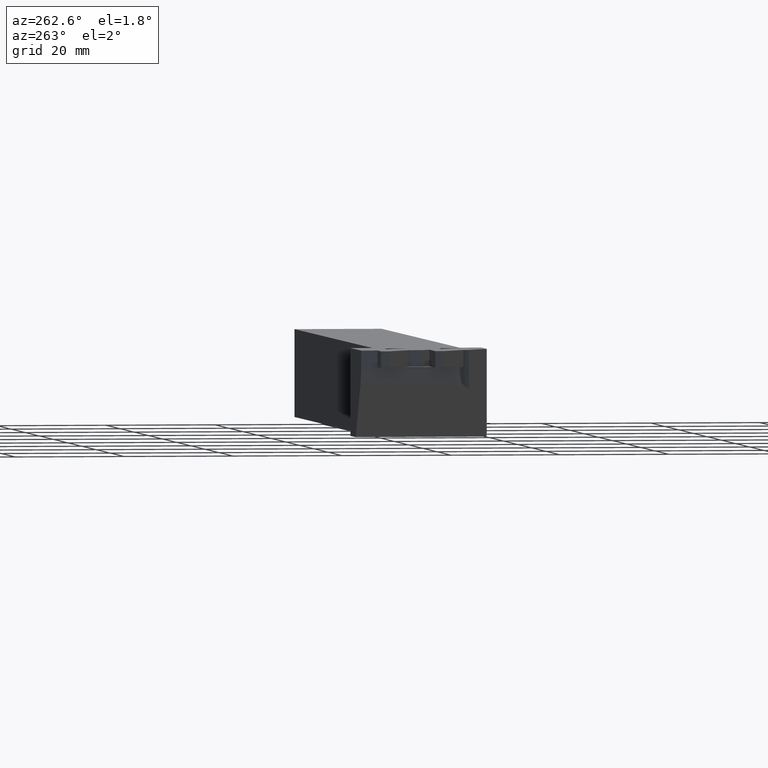
[diagram: clean part render]
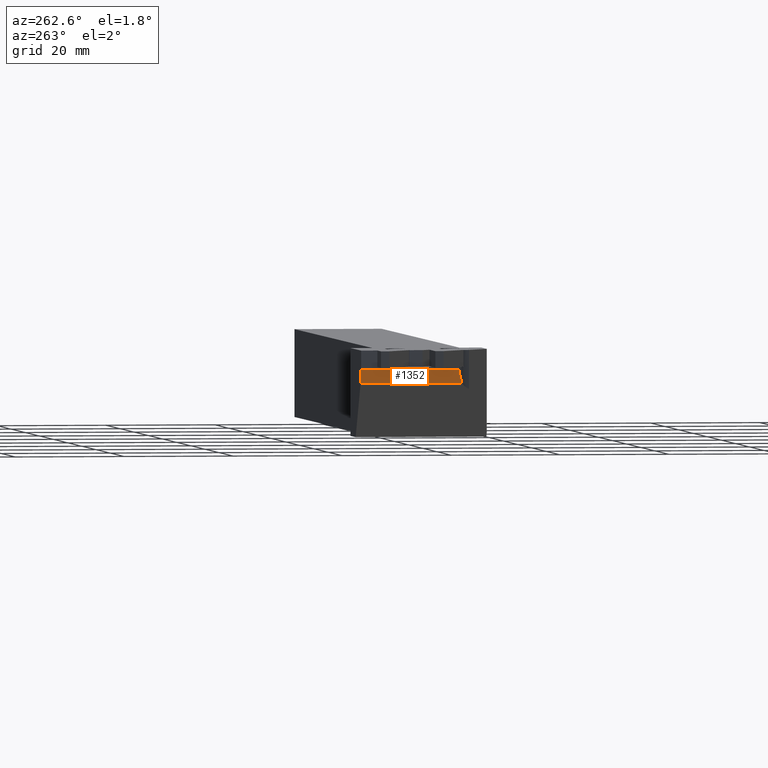
[diagram: same view with one face highlighted and labeled with its STEP entity id]
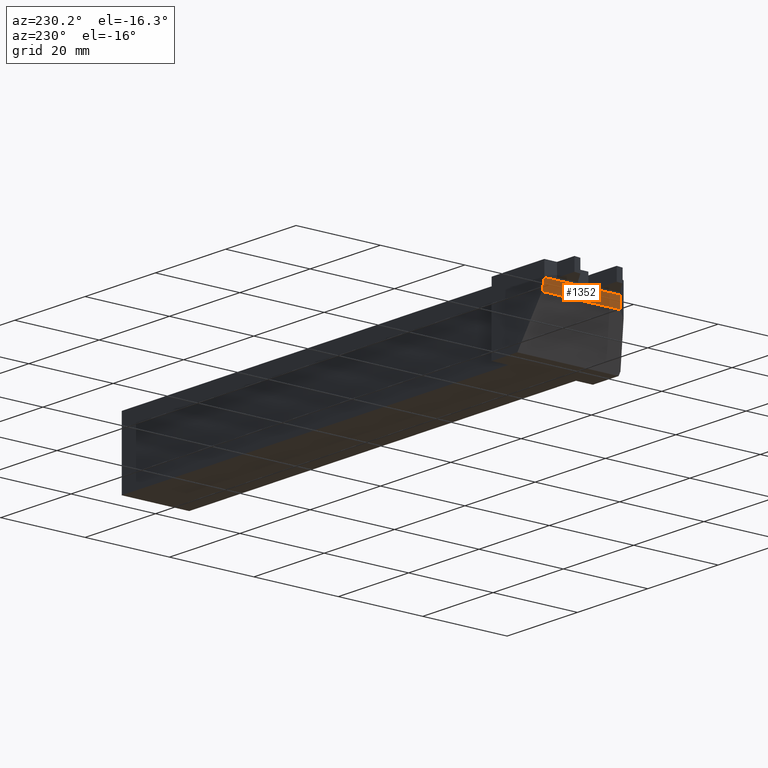
[diagram: same view with one face highlighted and labeled with its STEP entity id]
A machine part, auxiliary view. The second image highlights one B-rep face of the part: STEP entity #1352.
A second angle (auxiliary view) of the same face is appended — the face is thin or edge-on in the first view.
In plain terms, the highlighted planar face has unit normal (-0.9659, 0, -0.2588).
Its self-contained STEP definition (entity closure, byte-faithful):
#74 = EDGE_LOOP ( 'NONE', ( #841, #147, #3072, #1938 ) ) ;
#98 = EDGE_CURVE ( 'NONE', #2925, #1683, #1750, .T. ) ;
#106 = LINE ( 'NONE', #1356, #2705 ) ;
#147 = ORIENTED_EDGE ( 'NONE', *, *, #167, .F. ) ;
#167 = EDGE_CURVE ( 'NONE', #1683, #2577, #1095, .T. ) ;
#353 = AXIS2_PLACEMENT_3D ( 'NONE', #420, #2279, #2017 ) ;
#387 = CARTESIAN_POINT ( 'NONE',  ( -124.5285486383491500, -6.323891894779596800, -5.259480434978419400 ) ) ;
#420 = CARTESIAN_POINT ( 'NONE',  ( -125.0000000000000000, 176.1060491531268000, -3.499999999999999600 ) ) ;
#622 = VECTOR ( 'NONE', #1995, 1000.000000000000000 ) ;
#775 = EDGE_CURVE ( 'NONE', #2925, #1518, #106, .T. ) ;
#791 = CARTESIAN_POINT ( 'NONE',  ( -125.0000000000000000, 11.99999999999998200, -3.499999999999999600 ) ) ;
#841 = ORIENTED_EDGE ( 'NONE', *, *, #1260, .F. ) ;
#1082 = DIRECTION ( 'NONE',  ( 0.0000000000000000000, -1.000000000000000000, 0.0000000000000000000 ) ) ;
#1095 = LINE ( 'NONE', #2556, #622 ) ;
#1216 = VECTOR ( 'NONE', #3032, 999.9999999999998900 ) ;
#1260 = EDGE_CURVE ( 'NONE', #2577, #1518, #2145, .T. ) ;
#1352 = ADVANCED_FACE ( 'NONE', ( #1862 ), #1448, .T. ) ;
#1356 = CARTESIAN_POINT ( 'NONE',  ( -124.3301270189222000, 176.1060491531268000, -6.000000000000000000 ) ) ;
#1448 = PLANE ( 'NONE',  #353 ) ;
#1466 = CARTESIAN_POINT ( 'NONE',  ( -124.7528015606539400, -6.108554127211320400, -4.422557135191150100 ) ) ;
#1518 = VERTEX_POINT ( 'NONE', #3248 ) ;
#1683 = VERTEX_POINT ( 'NONE', #791 ) ;
#1711 = CARTESIAN_POINT ( 'NONE',  ( -124.3301270189222000, 11.99999999999998200, -6.000000000000000000 ) ) ;
#1736 = CARTESIAN_POINT ( 'NONE',  ( -124.3301270189222000, -6.563242241024392200, -6.000000000000000000 ) ) ;
#1750 = LINE ( 'NONE', #2252, #1216 ) ;
#1862 = FACE_OUTER_BOUND ( 'NONE', #74, .T. ) ;
#1938 = ORIENTED_EDGE ( 'NONE', *, *, #775, .T. ) ;
#1995 = DIRECTION ( 'NONE',  ( 0.0000000000000000000, -1.000000000000000000, 0.0000000000000000000 ) ) ;
#2017 = DIRECTION ( 'NONE',  ( -0.2588190451025198500, 0.0000000000000000000, 0.9659258262890686500 ) ) ;
#2145 =( BOUNDED_CURVE ( )  B_SPLINE_CURVE ( 3, ( #3279, #1466, #387, #1736 ),
 .UNSPECIFIED., .F., .T. ) 
 B_SPLINE_CURVE_WITH_KNOTS ( ( 4, 4 ),
 ( 5.364009271929212700, 5.591009412571511700 ),
 .UNSPECIFIED. ) 
 CURVE ( )  GEOMETRIC_REPRESENTATION_ITEM ( )  RATIONAL_B_SPLINE_CURVE ( ( 1.000000000000000000, 0.9957105191660073900, 0.9957105191660073900, 1.000000000000000000 ) ) 
 REPRESENTATION_ITEM ( '' )  );
#2252 = CARTESIAN_POINT ( 'NONE',  ( -121.8750000000000100, 11.99999999999998400, -15.16265877365274800 ) ) ;
#2279 = DIRECTION ( 'NONE',  ( -0.9659258262890686500, 0.0000000000000000000, -0.2588190451025198500 ) ) ;
#2556 = CARTESIAN_POINT ( 'NONE',  ( -125.0000000000000000, 176.1060491531268000, -3.499999999999999600 ) ) ;
#2577 = VERTEX_POINT ( 'NONE', #3346 ) ;
#2705 = VECTOR ( 'NONE', #1082, 1000.000000000000000 ) ;
#2925 = VERTEX_POINT ( 'NONE', #1711 ) ;
#3032 = DIRECTION ( 'NONE',  ( -0.2588190451025198500, -5.986392980923216600E-017, 0.9659258262890686500 ) ) ;
#3072 = ORIENTED_EDGE ( 'NONE', *, *, #98, .F. ) ;
#3248 = CARTESIAN_POINT ( 'NONE',  ( -124.3301270189222000, -6.563242241024392200, -6.000000000000000000 ) ) ;
#3279 = CARTESIAN_POINT ( 'NONE',  ( -125.0000000000000000, -5.920000000000036300, -3.499999999999999600 ) ) ;
#3346 = CARTESIAN_POINT ( 'NONE',  ( -125.0000000000000000, -5.920000000000036300, -3.499999999999999600 ) ) ;